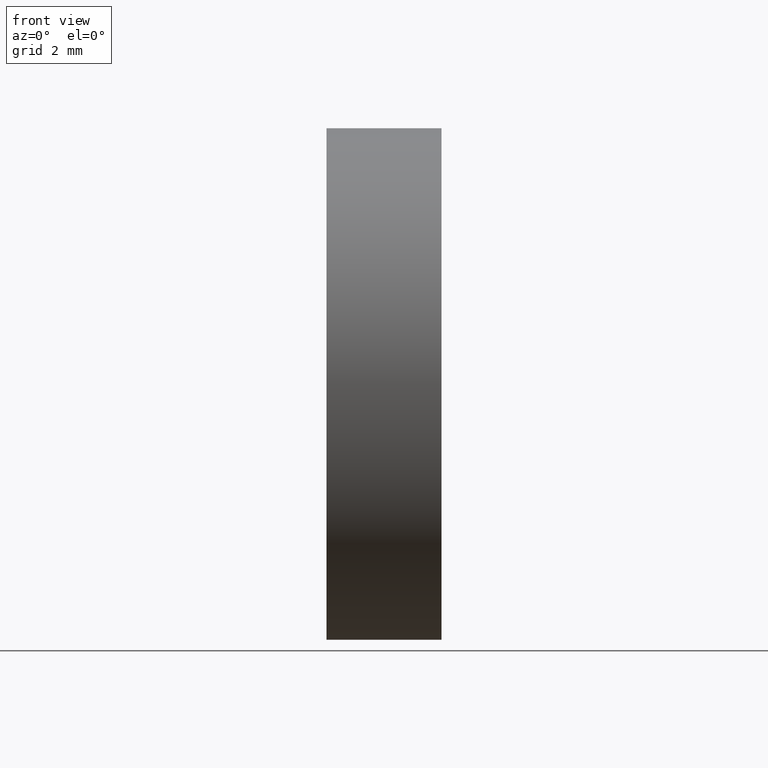
[diagram: clean part render]
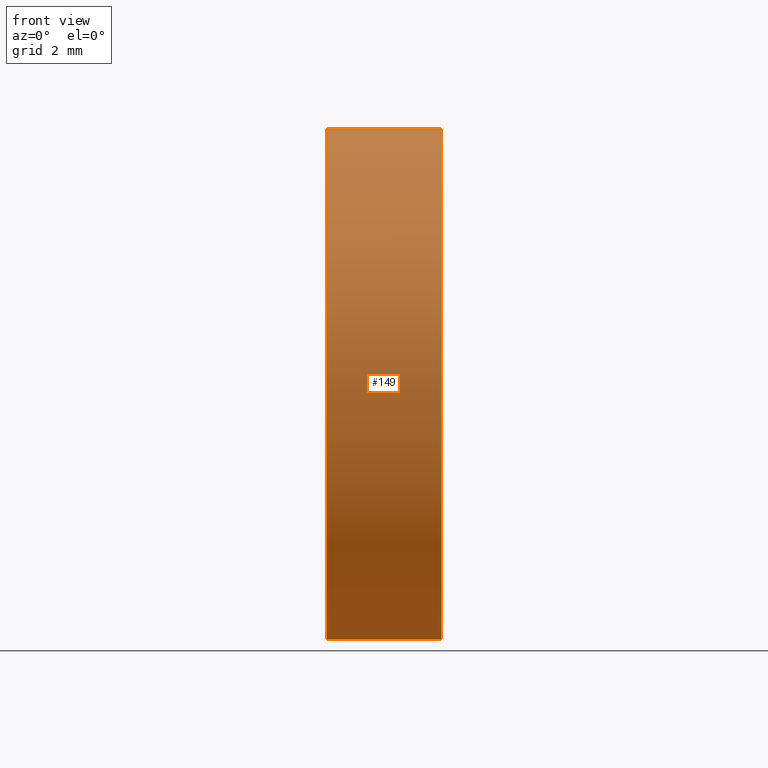
[diagram: same view with one face highlighted and labeled with its STEP entity id]
A machine part, front view. The second image highlights one B-rep face of the part: STEP entity #149.
In plain terms, the highlighted cylindrical surface (partial cylindrical patch) has radius 8 mm, axis along (-1, -0, -0).
Its self-contained STEP definition (entity closure, byte-faithful):
#1 = CARTESIAN_POINT ( 'NONE',  ( 47.91777018609677400, 26.08904114919495900, -8.000000000000001800 ) ) ;
#3 = DIRECTION ( 'NONE',  ( -1.000000000000000000, -0.0000000000000000000, -0.0000000000000000000 ) ) ;
#4 = DIRECTION ( 'NONE',  ( -1.000000000000000000, -0.0000000000000000000, -0.0000000000000000000 ) ) ;
#8 = CARTESIAN_POINT ( 'NONE',  ( 47.91777018609677400, 26.08904114919495900, 8.000000000000001800 ) ) ;
#19 = CARTESIAN_POINT ( 'NONE',  ( 44.31915269315436500, 26.08904114919495900, -8.000000000000003600 ) ) ;
#20 = ORIENTED_EDGE ( 'NONE', *, *, #61, .F. ) ;
#21 = DIRECTION ( 'NONE',  ( -1.000000000000000000, -0.0000000000000000000, -0.0000000000000000000 ) ) ;
#23 = EDGE_CURVE ( 'NONE', #41, #151, #46, .T. ) ;
#29 = EDGE_LOOP ( 'NONE', ( #55, #141, #91, #20 ) ) ;
#32 = VECTOR ( 'NONE', #122, 1000.000000000000000 ) ;
#38 = CARTESIAN_POINT ( 'NONE',  ( 44.31915269315436500, 26.08904114919495900, 8.000000000000003600 ) ) ;
#41 = VERTEX_POINT ( 'NONE', #1 ) ;
#46 = CIRCLE ( 'NONE', #52, 8.000000000000003600 ) ;
#49 = EDGE_CURVE ( 'NONE', #151, #134, #57, .T. ) ;
#52 = AXIS2_PLACEMENT_3D ( 'NONE', #68, #4, #69 ) ;
#55 = ORIENTED_EDGE ( 'NONE', *, *, #117, .F. ) ;
#56 = CARTESIAN_POINT ( 'NONE',  ( 42.44986111413682300, 26.08904114919495900, -8.000000000000003600 ) ) ;
#57 = LINE ( 'NONE', #143, #163 ) ;
#60 = DIRECTION ( 'NONE',  ( 0.0000000000000000000, 0.0000000000000000000, 1.000000000000000000 ) ) ;
#61 = EDGE_CURVE ( 'NONE', #109, #134, #129, .T. ) ;
#68 = CARTESIAN_POINT ( 'NONE',  ( 47.91777018609677400, 26.08904114919495900, 0.0000000000000000000 ) ) ;
#69 = DIRECTION ( 'NONE',  ( 0.0000000000000000000, 0.0000000000000000000, 1.000000000000000000 ) ) ;
#80 = DIRECTION ( 'NONE',  ( 0.0000000000000000000, 0.0000000000000000000, 1.000000000000000000 ) ) ;
#91 = ORIENTED_EDGE ( 'NONE', *, *, #49, .T. ) ;
#92 = FACE_OUTER_BOUND ( 'NONE', #29, .T. ) ;
#98 = CARTESIAN_POINT ( 'NONE',  ( 44.31915269315436500, 26.08904114919495900, 0.0000000000000000000 ) ) ;
#107 = AXIS2_PLACEMENT_3D ( 'NONE', #137, #159, #60 ) ;
#109 = VERTEX_POINT ( 'NONE', #19 ) ;
#117 = EDGE_CURVE ( 'NONE', #41, #109, #164, .T. ) ;
#122 = DIRECTION ( 'NONE',  ( -1.000000000000000000, -0.0000000000000000000, -0.0000000000000000000 ) ) ;
#129 = CIRCLE ( 'NONE', #132, 8.000000000000003600 ) ;
#131 = CYLINDRICAL_SURFACE ( 'NONE', #107, 8.000000000000003600 ) ;
#132 = AXIS2_PLACEMENT_3D ( 'NONE', #98, #21, #80 ) ;
#134 = VERTEX_POINT ( 'NONE', #38 ) ;
#137 = CARTESIAN_POINT ( 'NONE',  ( 42.44986111413682300, 26.08904114919495900, 0.0000000000000000000 ) ) ;
#141 = ORIENTED_EDGE ( 'NONE', *, *, #23, .T. ) ;
#143 = CARTESIAN_POINT ( 'NONE',  ( 42.44986111413682300, 26.08904114919495900, 8.000000000000003600 ) ) ;
#149 = ADVANCED_FACE ( 'NONE', ( #92 ), #131, .T. ) ;
#151 = VERTEX_POINT ( 'NONE', #8 ) ;
#159 = DIRECTION ( 'NONE',  ( -1.000000000000000000, -0.0000000000000000000, -0.0000000000000000000 ) ) ;
#163 = VECTOR ( 'NONE', #3, 1000.000000000000000 ) ;
#164 = LINE ( 'NONE', #56, #32 ) ;